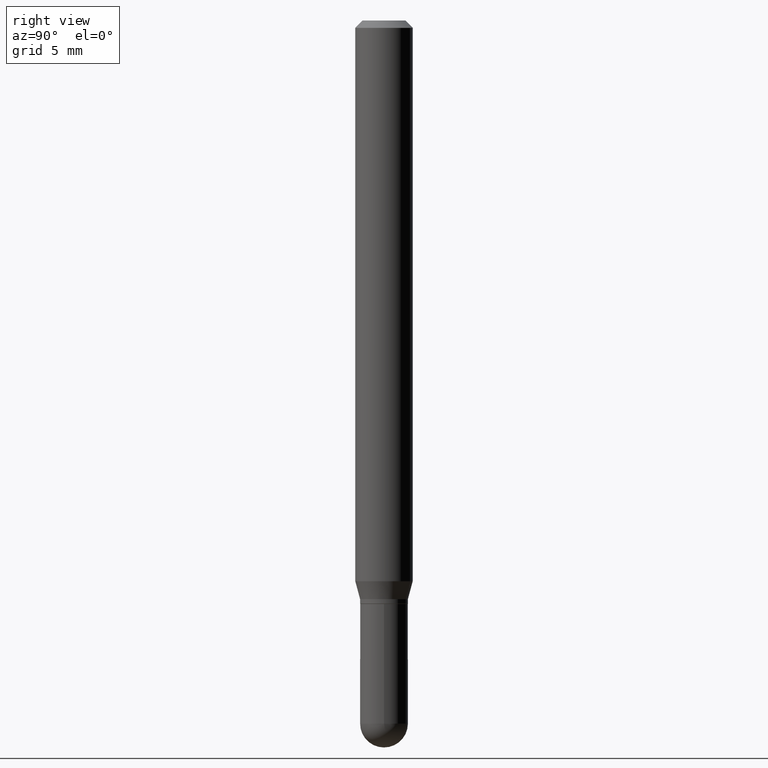
[diagram: clean part render]
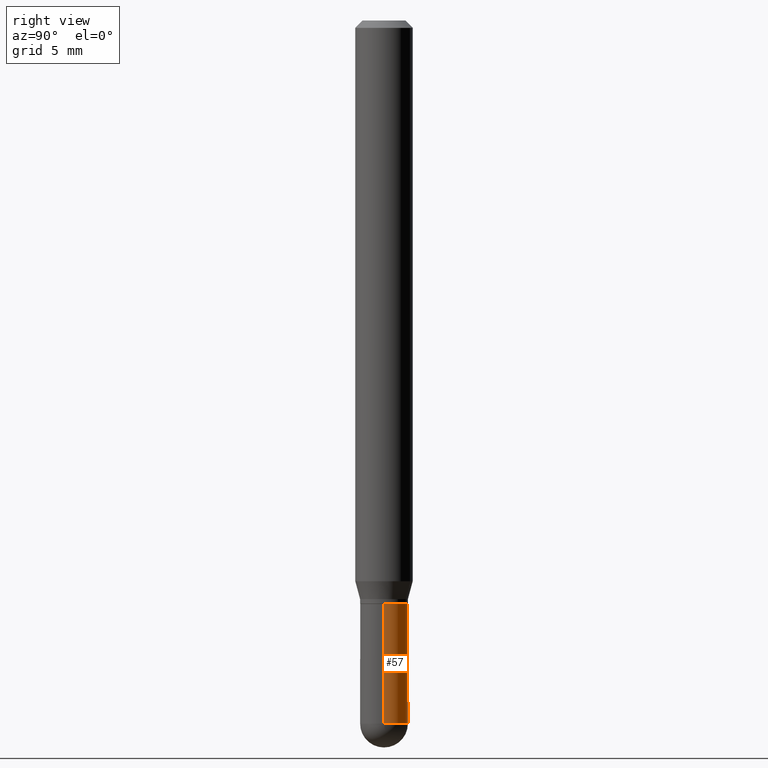
[diagram: same view with one face highlighted and labeled with its STEP entity id]
A machine part, right view. The second image highlights one B-rep face of the part: STEP entity #57.
In plain terms, the highlighted cylindrical surface (edge-blend (fillet) strip) has radius 1.2497 mm, axis along (-0, 0, 1).
Its self-contained STEP definition (entity closure, byte-faithful):
#8 = DIRECTION ( 'NONE',  ( -2.445468806185136877E-29, 3.491481338843145188E-15, 1.000000000000000000 ) ) ;
#57 = ADVANCED_FACE ( 'NONE', ( #481 ), #129, .T. ) ;
#69 = DIRECTION ( 'NONE',  ( -2.445468806185136597E-29, 3.491481338843145583E-15, 1.000000000000000000 ) ) ;
#91 = EDGE_CURVE ( 'NONE', #157, #362, #293, .T. ) ;
#96 = DIRECTION ( 'NONE',  ( 1.000000000000000000, -6.982962677686261977E-15, 0.000000000000000000 ) ) ;
#100 = EDGE_CURVE ( 'NONE', #439, #180, #207, .T. ) ;
#114 = CARTESIAN_POINT ( 'NONE',  ( 0.04920000000000000068, -3.435617637421643269E-16, 2.399078973691600472E-30 ) ) ;
#117 = ORIENTED_EDGE ( 'NONE', *, *, #91, .T. ) ;
#125 = CARTESIAN_POINT ( 'NONE',  ( -0.04920000000000000068, -4.272610544433528176E-15, -1.446899999999999853 ) ) ;
#129 = CYLINDRICAL_SURFACE ( 'NONE', #150, 0.04920000000000000068 ) ;
#149 = CARTESIAN_POINT ( 'NONE',  ( 0.04920000000000000068, -4.965759334169662144E-15, -1.446899999999999853 ) ) ;
#150 = AXIS2_PLACEMENT_3D ( 'NONE', #176, #448, #452 ) ;
#152 = CARTESIAN_POINT ( 'NONE',  ( -0.04920000000000000068, -4.272610544433528176E-15, -1.200799999999999867 ) ) ;
#153 = VERTEX_POINT ( 'NONE', #466 ) ;
#155 = CIRCLE ( 'NONE', #418, 0.04920000000000000068 ) ;
#157 = VERTEX_POINT ( 'NONE', #149 ) ;
#167 = ORIENTED_EDGE ( 'NONE', *, *, #425, .F. ) ;
#176 = CARTESIAN_POINT ( 'NONE',  ( 0.000000000000000000, 0.000000000000000000, 0.000000000000000000 ) ) ;
#180 = VERTEX_POINT ( 'NONE', #152 ) ;
#189 = EDGE_CURVE ( 'NONE', #157, #153, #193, .T. ) ;
#193 = LINE ( 'NONE', #114, #272 ) ;
#203 = EDGE_CURVE ( 'NONE', #362, #439, #155, .T. ) ;
#204 = EDGE_LOOP ( 'NONE', ( #341, #503, #167, #470, #117 ) ) ;
#207 = LINE ( 'NONE', #356, #234 ) ;
#211 = DIRECTION ( 'NONE',  ( -2.445468806185136597E-29, 3.491481338843145583E-15, 1.000000000000000000 ) ) ;
#234 = VECTOR ( 'NONE', #8, 39.37007874015748143 ) ;
#269 = DIRECTION ( 'NONE',  ( 1.000000000000000000, -6.982962677686261977E-15, 0.000000000000000000 ) ) ;
#272 = VECTOR ( 'NONE', #424, 39.37007874015748143 ) ;
#293 = CIRCLE ( 'NONE', #460, 0.04920000000000000068 ) ;
#323 = CIRCLE ( 'NONE', #467, 0.04920000000000000068 ) ;
#334 = DIRECTION ( 'NONE',  ( -2.445468806185136597E-29, 3.491481338843145583E-15, 1.000000000000000000 ) ) ;
#341 = ORIENTED_EDGE ( 'NONE', *, *, #203, .T. ) ;
#356 = CARTESIAN_POINT ( 'NONE',  ( -0.04920000000000000068, 3.495870259939692963E-16, -2.420116064405413767E-30 ) ) ;
#358 = DIRECTION ( 'NONE',  ( 1.000000000000000000, -6.982962677686261977E-15, 0.000000000000000000 ) ) ;
#362 = VERTEX_POINT ( 'NONE', #364 ) ;
#364 = CARTESIAN_POINT ( 'NONE',  ( 3.495870259940048443E-16, 0.04919999999999498386, -1.446900000000000075 ) ) ;
#373 = CARTESIAN_POINT ( 'NONE',  ( 3.538348815669273817E-29, -5.051824349172146609E-15, -1.446899999999999853 ) ) ;
#418 = AXIS2_PLACEMENT_3D ( 'NONE', #500, #69, #269 ) ;
#424 = DIRECTION ( 'NONE',  ( -2.445468806185136877E-29, 3.491481338843145188E-15, 1.000000000000000000 ) ) ;
#425 = EDGE_CURVE ( 'NONE', #153, #180, #323, .T. ) ;
#439 = VERTEX_POINT ( 'NONE', #125 ) ;
#445 = CARTESIAN_POINT ( 'NONE',  ( 2.936518942467111614E-29, -4.192570791682848632E-15, -1.200799999999999867 ) ) ;
#448 = DIRECTION ( 'NONE',  ( -2.445468806185136597E-29, 3.491481338843145583E-15, 1.000000000000000000 ) ) ;
#452 = DIRECTION ( 'NONE',  ( 1.000000000000000000, -6.982962677686266711E-15, 4.876176775795935793E-29 ) ) ;
#460 = AXIS2_PLACEMENT_3D ( 'NONE', #373, #334, #96 ) ;
#466 = CARTESIAN_POINT ( 'NONE',  ( 0.04920000000000000068, -4.536132555425013156E-15, -1.200799999999999867 ) ) ;
#467 = AXIS2_PLACEMENT_3D ( 'NONE', #445, #211, #358 ) ;
#470 = ORIENTED_EDGE ( 'NONE', *, *, #189, .F. ) ;
#481 = FACE_OUTER_BOUND ( 'NONE', #204, .T. ) ;
#500 = CARTESIAN_POINT ( 'NONE',  ( 3.538348815669273817E-29, -5.051824349172146609E-15, -1.446899999999999853 ) ) ;
#503 = ORIENTED_EDGE ( 'NONE', *, *, #100, .T. ) ;